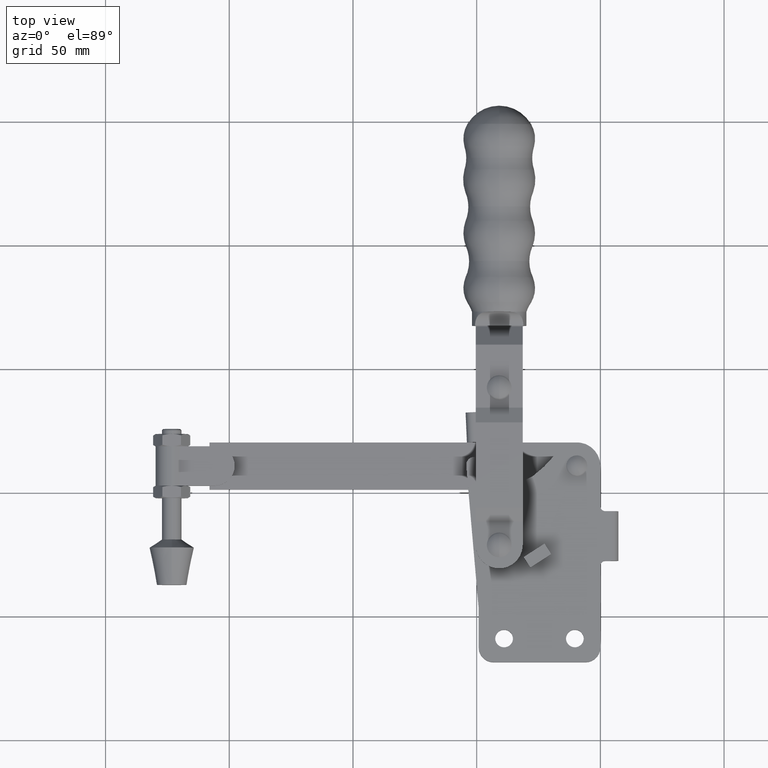
[diagram: clean part render]
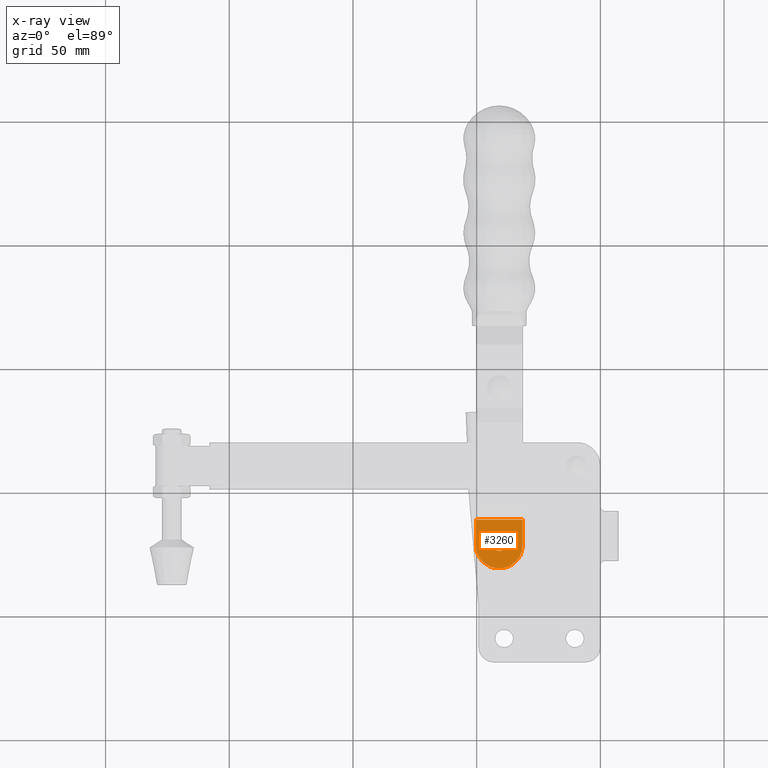
[diagram: x-ray — body ghosted, one internal face saturated and labeled with its STEP entity id]
A machine part, top view, then the same camera in x-ray: the body is ghosted and one INTERNAL B-rep face — a face not visible from any outside direction — is saturated and labeled: STEP entity #3260.
In plain terms, the highlighted planar face has unit normal (-0, 0, -1).
Its self-contained STEP definition (entity closure, byte-faithful):
#93 = VECTOR ( 'NONE', #4140, 1000.000000000000100 ) ;
#456 = FACE_OUTER_BOUND ( 'NONE', #6115, .T. ) ;
#667 = CIRCLE ( 'NONE', #2201, 2.399999999999999500 ) ;
#869 = VERTEX_POINT ( 'NONE', #4617 ) ;
#1430 = AXIS2_PLACEMENT_3D ( 'NONE', #2299, #2282, #9023 ) ;
#1522 = CARTESIAN_POINT ( 'NONE',  ( -50.39836236951244800, 19.13050363874932500, 6.000000000000000000 ) ) ;
#1588 = ORIENTED_EDGE ( 'NONE', *, *, #9001, .F. ) ;
#1888 = DIRECTION ( 'NONE',  ( -1.000000000000000000, 0.0000000000000000000, 0.0000000000000000000 ) ) ;
#1900 = DIRECTION ( 'NONE',  ( -6.936611590567913300E-020, 1.586539380122181100E-020, -1.000000000000000000 ) ) ;
#1907 = CARTESIAN_POINT ( 'NONE',  ( -40.89785875746165500, 28.62999999999998800, 6.000000000000000000 ) ) ;
#2112 = LINE ( 'NONE', #3944, #93 ) ;
#2201 = AXIS2_PLACEMENT_3D ( 'NONE', #1907, #1900, #1888 ) ;
#2252 = DIRECTION ( 'NONE',  ( 5.301320001215025700E-005, 0.9999999985948002700, 1.586171645915118900E-020 ) ) ;
#2282 = DIRECTION ( 'NONE',  ( -6.936611590567913300E-020, 1.586539380122181100E-020, -1.000000000000000000 ) ) ;
#2299 = CARTESIAN_POINT ( 'NONE',  ( -40.89785875746174100, 28.62999999999987800, 6.000000000000000000 ) ) ;
#3015 = PLANE ( 'NONE',  #5003 ) ;
#3260 = ADVANCED_FACE ( 'NONE', ( #456, #6559 ), #3015, .T. ) ;
#3763 = ORIENTED_EDGE ( 'NONE', *, *, #6782, .T. ) ;
#3906 = AXIS2_PLACEMENT_3D ( 'NONE', #4538, #4459, #4443 ) ;
#3944 = CARTESIAN_POINT ( 'NONE',  ( -50.39731456456617300, 38.89548565404613400, 6.000000000000000000 ) ) ;
#4140 = DIRECTION ( 'NONE',  ( 0.9999999985948002700, -5.301320001215025700E-005, -6.936695688350072000E-020 ) ) ;
#4443 = DIRECTION ( 'NONE',  ( -1.000000000000000000, 0.0000000000000000000, 0.0000000000000000000 ) ) ;
#4451 = ORIENTED_EDGE ( 'NONE', *, *, #4885, .T. ) ;
#4459 = DIRECTION ( 'NONE',  ( -6.936611590567913300E-020, 1.586539380122181100E-020, -1.000000000000000000 ) ) ;
#4528 = DIRECTION ( 'NONE',  ( -0.9999999985948002700, 5.301320001215025700E-005, 6.936695688350072000E-020 ) ) ;
#4538 = CARTESIAN_POINT ( 'NONE',  ( -40.89785875746165500, 28.62999999999998800, 6.000000000000000000 ) ) ;
#4617 = CARTESIAN_POINT ( 'NONE',  ( -43.29785875746165400, 28.62999999999998800, 6.000000000000000000 ) ) ;
#4623 = ORIENTED_EDGE ( 'NONE', *, *, #7350, .T. ) ;
#4885 = EDGE_CURVE ( 'NONE', #7852, #8046, #9650, .T. ) ;
#5003 = AXIS2_PLACEMENT_3D ( 'NONE', #1522, #5283, #4528 ) ;
#5272 = CARTESIAN_POINT ( 'NONE',  ( -50.39836236951244800, 19.13050363874932500, 6.000000000000000000 ) ) ;
#5283 = DIRECTION ( 'NONE',  ( -6.936611590567912100E-020, 1.586539380122181400E-020, -1.000000000000000000 ) ) ;
#5422 = ORIENTED_EDGE ( 'NONE', *, *, #7321, .F. ) ;
#5572 = EDGE_CURVE ( 'NONE', #7839, #6166, #7074, .T. ) ;
#6115 = EDGE_LOOP ( 'NONE', ( #10253, #3763, #4451, #4623 ) ) ;
#6166 = VERTEX_POINT ( 'NONE', #8710 ) ;
#6559 = FACE_BOUND ( 'NONE', #7519, .T. ) ;
#6782 = EDGE_CURVE ( 'NONE', #7839, #7852, #7883, .T. ) ;
#6850 = CARTESIAN_POINT ( 'NONE',  ( -38.49785875746165700, 28.62999999999998800, 6.000000000000000000 ) ) ;
#7074 = LINE ( 'NONE', #7860, #9085 ) ;
#7318 = CARTESIAN_POINT ( 'NONE',  ( -50.39731456456617300, 38.89548565404613400, 6.000000000000000000 ) ) ;
#7321 = EDGE_CURVE ( 'NONE', #8124, #869, #8679, .T. ) ;
#7350 = EDGE_CURVE ( 'NONE', #8046, #6166, #2112, .T. ) ;
#7368 = VECTOR ( 'NONE', #2252, 1000.000000000000100 ) ;
#7519 = EDGE_LOOP ( 'NONE', ( #5422, #1588 ) ) ;
#7839 = VERTEX_POINT ( 'NONE', #9144 ) ;
#7852 = VERTEX_POINT ( 'NONE', #8730 ) ;
#7860 = CARTESIAN_POINT ( 'NONE',  ( -31.39836239621124400, 19.12949638794908600, 6.000000000000000000 ) ) ;
#7883 = CIRCLE ( 'NONE', #1430, 9.500000000000008900 ) ;
#7960 = DIRECTION ( 'NONE',  ( 5.301320001215025700E-005, 0.9999999985948002700, 1.586171645915118900E-020 ) ) ;
#8046 = VERTEX_POINT ( 'NONE', #7318 ) ;
#8124 = VERTEX_POINT ( 'NONE', #6850 ) ;
#8679 = CIRCLE ( 'NONE', #3906, 2.399999999999999500 ) ;
#8710 = CARTESIAN_POINT ( 'NONE',  ( -31.39731459126495500, 38.89447840324589100, 6.000000000000000000 ) ) ;
#8730 = CARTESIAN_POINT ( 'NONE',  ( -50.39785874411234800, 28.63050362540001000, 6.000000000000000000 ) ) ;
#9001 = EDGE_CURVE ( 'NONE', #869, #8124, #667, .T. ) ;
#9023 = DIRECTION ( 'NONE',  ( -0.9999999985948001500, 5.301320001221375700E-005, 0.0000000000000000000 ) ) ;
#9085 = VECTOR ( 'NONE', #7960, 1000.000000000000100 ) ;
#9144 = CARTESIAN_POINT ( 'NONE',  ( -31.39785877081113000, 28.62949637459977100, 6.000000000000000000 ) ) ;
#9650 = LINE ( 'NONE', #5272, #7368 ) ;
#10253 = ORIENTED_EDGE ( 'NONE', *, *, #5572, .F. ) ;